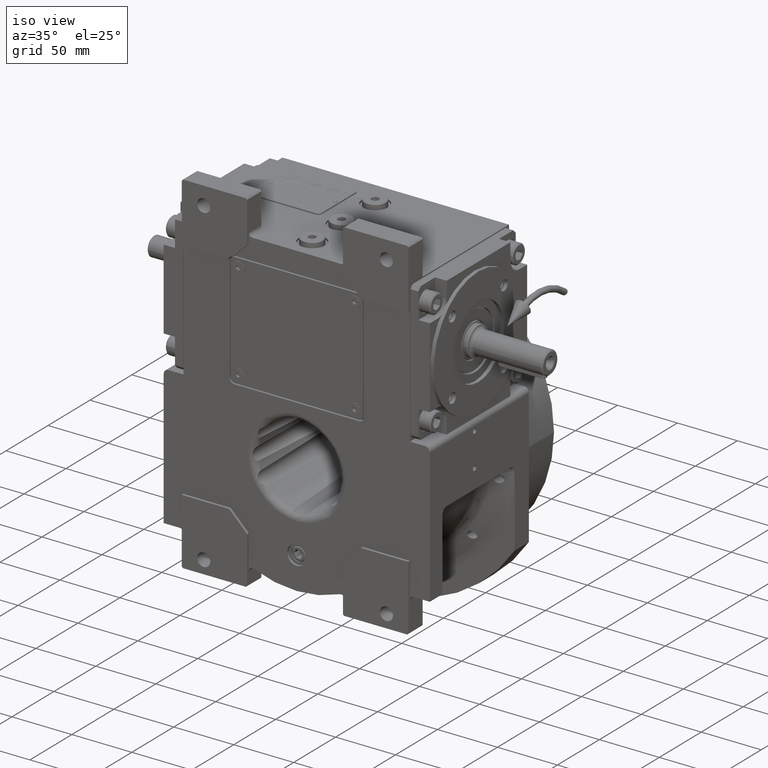
[diagram: clean part render]
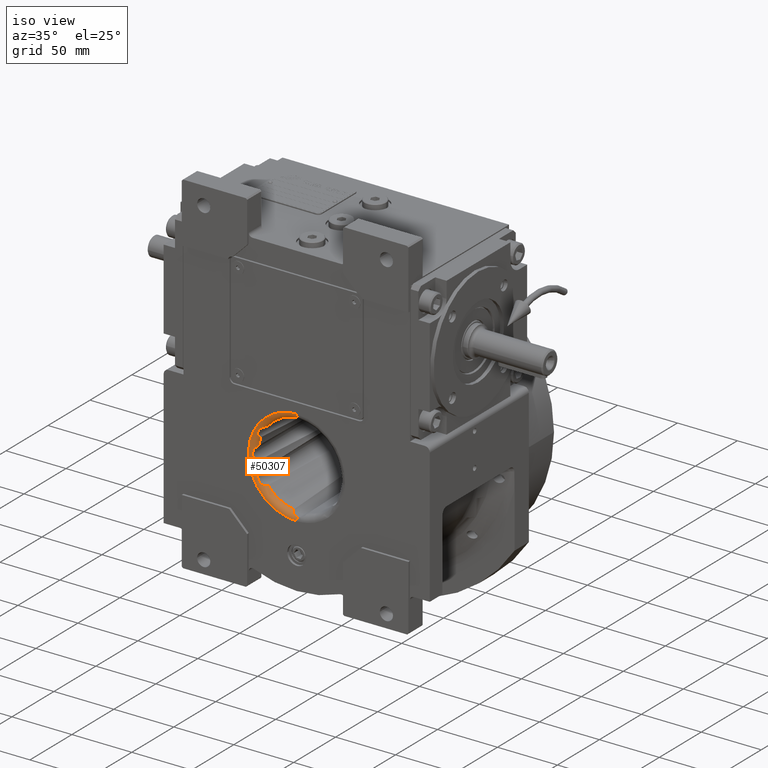
[diagram: same view with one face highlighted and labeled with its STEP entity id]
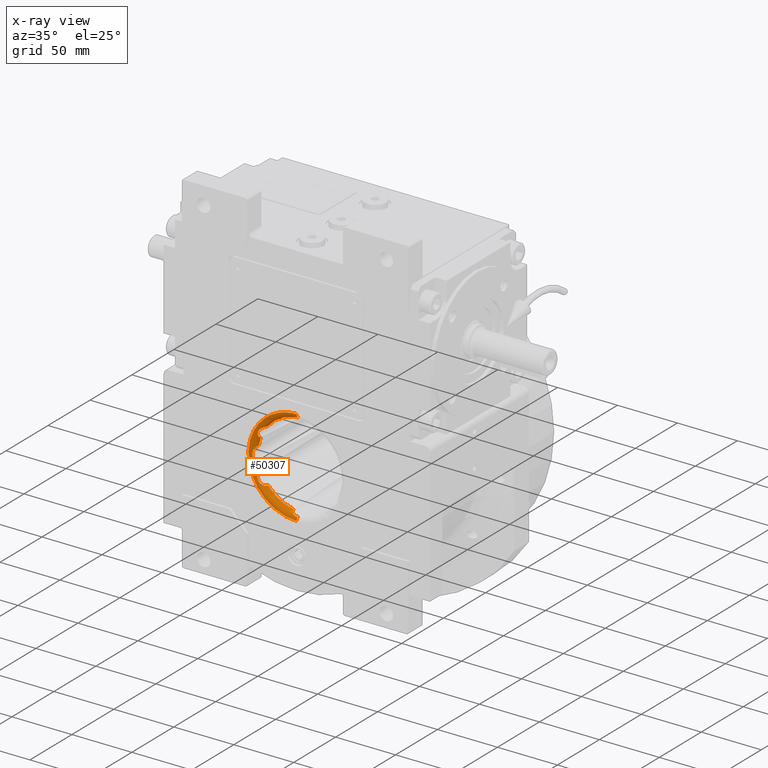
[diagram: x-ray of the same camera — body ghosted, the highlighted face saturated]
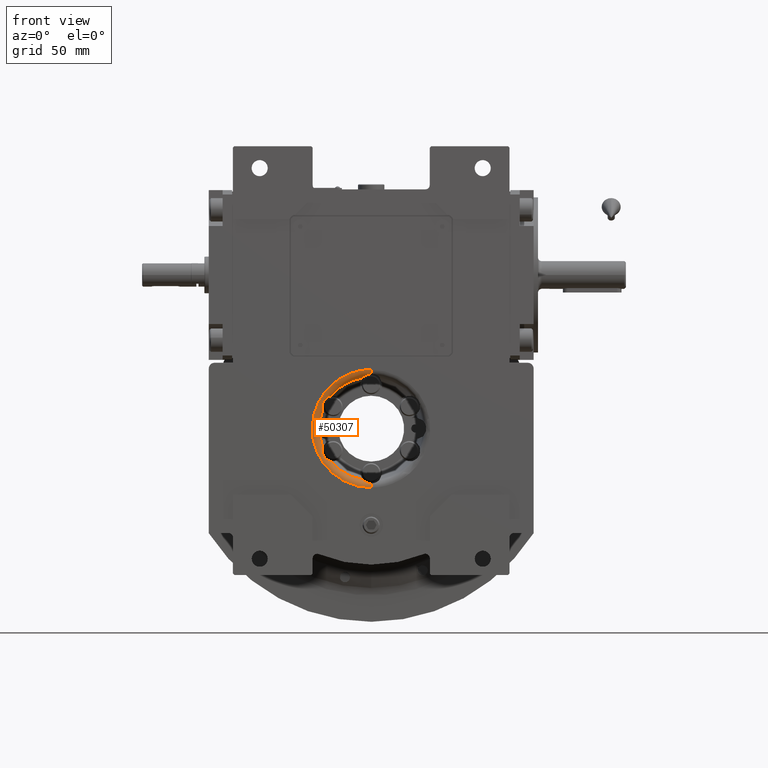
[diagram: same view with one face highlighted and labeled with its STEP entity id]
A machine part, iso view. The second image highlights one B-rep face of the part: STEP entity #50307.
The next image is the same camera in x-ray: the body ghosted, the highlighted face saturated — about 0% of this face is hidden behind the body in this view.
A second angle (front view) of the same face is appended — the face is thin or edge-on in the first view.
In plain terms, the highlighted toroidal blend (fillet) surface has major radius 40.3096 mm and minor (blend) radius 5 mm.
Its self-contained STEP definition (entity closure, byte-faithful):
#106 = EDGE_CURVE ( 'NONE', #64849, #56020, #44789, .T. ) ;
#228 = CARTESIAN_POINT ( 'NONE',  ( -31.82166990027069531, -52.58899155538596659, 19.71231372235984125 ) ) ;
#239 = CARTESIAN_POINT ( 'NONE',  ( -1.603856535494735125E-09, -52.63596184683439816, 37.50000000000000000 ) ) ;
#572 = CARTESIAN_POINT ( 'NONE',  ( -28.90464695035921494, -51.45251600167598127, 21.91045421014402095 ) ) ;
#581 = CARTESIAN_POINT ( 'NONE',  ( -5.213985633455788360, -50.60237093196881375, 35.39102302310666914 ) ) ;
#909 = CARTESIAN_POINT ( 'NONE',  ( -28.15008051919111765, -50.73773405834930372, -22.17961611171003611 ) ) ;
#1192 = ORIENTED_EDGE ( 'NONE', *, *, #40376, .T. ) ;
#1270 = CARTESIAN_POINT ( 'NONE',  ( -32.27610797784565477, -52.63304389909050940, -19.08511628725423037 ) ) ;
#1611 = CARTESIAN_POINT ( 'NONE',  ( -27.99487110530977318, -50.53926129247206944, -22.22432816892212415 ) ) ;
#1614 = CARTESIAN_POINT ( 'NONE',  ( -33.48065902542229821, -51.94651877671636697, -15.00005041233815284 ) ) ;
#1617 = CARTESIAN_POINT ( 'NONE',  ( -2.408118901776810095, -52.40757125817717110, -37.11215947056530240 ) ) ;
#1625 = CARTESIAN_POINT ( 'NONE',  ( -27.31593238095755183, -48.69402850002909844, 22.38019785351225011 ) ) ;
#1630 = CARTESIAN_POINT ( 'NONE',  ( -9.495824261203000555E-09, -48.50000000000000000, 40.30959420584730424 ) ) ;
#1944 = CARTESIAN_POINT ( 'NONE',  ( -31.82140708149247388, -52.58895953837874515, -19.71265100756068733 ) ) ;
#1950 = CARTESIAN_POINT ( 'NONE',  ( 1.603850723419534978E-09, -52.63596184683439816, -37.50000000000000000 ) ) ;
#2295 = CARTESIAN_POINT ( 'NONE',  ( -31.97949066727202805, -52.60861459975956933, -19.50990255030048459 ) ) ;
#2632 = CARTESIAN_POINT ( 'NONE',  ( -35.79781234965685144, -51.22087791308522498, 4.761083771521589014 ) ) ;
#2712 = CIRCLE ( 'NONE', #47624, 4.999999999999997335 ) ;
#2957 = CARTESIAN_POINT ( 'NONE',  ( -36.54770197314466174, -51.99170685750559073, 3.658733280678785782 ) ) ;
#3107 = CARTESIAN_POINT ( 'NONE',  ( -33.25967818971971468, -50.61906307847965536, -13.19280694728427150 ) ) ;
#3242 = CARTESIAN_POINT ( 'NONE',  ( -33.03978607334229878, -48.69402850002909844, 12.46619244321112063 ) ) ;
#3323 = EDGE_CURVE ( 'NONE', #15087, #50419, #2712, .T. ) ;
#3606 = CARTESIAN_POINT ( 'NONE',  ( -33.25969623485429594, -50.61914520538581996, 13.19286513792811455 ) ) ;
#3820 = CARTESIAN_POINT ( 'NONE',  ( -33.03978607334229878, -48.69402850002909844, -12.46619244321105846 ) ) ;
#3948 = CARTESIAN_POINT ( 'NONE',  ( -33.26640977064202787, -50.65337444815863677, 13.21985933045443673 ) ) ;
#3985 = CARTESIAN_POINT ( 'NONE',  ( -34.92230038515041457, -49.38786160803886105, -5.660090759269483129 ) ) ;
#4016 = DIRECTION ( 'NONE',  ( 0.000000000000000000, 1.000000000000000000, 0.000000000000000000 ) ) ;
#4330 = CARTESIAN_POINT ( 'NONE',  ( -35.38985876883371873, -50.60022425254692990, -5.215066509444947762 ) ) ;
#4639 = CARTESIAN_POINT ( 'NONE',  ( -33.47881434670429002, -51.87435534681035421, 14.83865528481973861 ) ) ;
#4678 = VERTEX_POINT ( 'NONE', #46112 ) ;
#4681 = CARTESIAN_POINT ( 'NONE',  ( -36.05737927987627955, -51.52631744755399268, -4.426109131331852353 ) ) ;
#4795 = CARTESIAN_POINT ( 'NONE',  ( -4.136350574445229356, -51.73019518094505287, 36.25730900795129941 ) ) ;
#5138 = CARTESIAN_POINT ( 'NONE',  ( -1.402137547244156845, -52.58474267382023015, 37.39942789236261689 ) ) ;
#5486 = CARTESIAN_POINT ( 'NONE',  ( -0.7110346611028061092, -52.63607783442121502, 37.50017074357127456 ) ) ;
#5572 = ORIENTED_EDGE ( 'NONE', *, *, #42747, .F. ) ;
#5845 = CARTESIAN_POINT ( 'NONE',  ( -3.657082585409805908, -51.99282415957538461, -36.54896482573982297 ) ) ;
#6074 = CARTESIAN_POINT ( 'NONE',  ( -36.38802021312464774, -51.85198914278720395, -3.929397563598371335 ) ) ;
#6183 = CARTESIAN_POINT ( 'NONE',  ( -4.432578927850743256, -51.53484705337476868, -36.05731220112073032 ) ) ;
#6508 = CARTESIAN_POINT ( 'NONE',  ( -27.31593238095755183, -48.69402850002909844, 22.38019785351225011 ) ) ;
#6517 = CARTESIAN_POINT ( 'NONE',  ( -0.3553892396859897329, -52.63601862953336763, -37.50008358898191574 ) ) ;
#6767 = CARTESIAN_POINT ( 'NONE',  ( -37.20514037371744820, -52.46491046812580805, -2.082363054648559864 ) ) ;
#6977 = AXIS2_PLACEMENT_3D ( 'NONE', #59723, #65346, #64656 ) ;
#7212 = CARTESIAN_POINT ( 'NONE',  ( -29.61160658843931515, -51.88574788270577187, -21.56233139341213345 ) ) ;
#7545 = CARTESIAN_POINT ( 'NONE',  ( -32.41541406928116942, -52.63782132828642801, -18.86172920714922441 ) ) ;
#8114 = VERTEX_POINT ( 'NONE', #25023 ) ;
#8241 = CARTESIAN_POINT ( 'NONE',  ( -37.49999999996260414, -52.63596185006461070, 9.692922927498324540E-14 ) ) ;
#8576 = CARTESIAN_POINT ( 'NONE',  ( -35.46445849641784775, -50.73085163937124520, 5.137289340209725275 ) ) ;
#8868 = CARTESIAN_POINT ( 'NONE',  ( -33.20376525769733433, -50.31782160580227270, 12.98095620934816274 ) ) ;
#8938 = CARTESIAN_POINT ( 'NONE',  ( -34.87905876915444736, -49.40060510385536219, 5.694260973935433512 ) ) ;
#9008 = ORIENTED_EDGE ( 'NONE', *, *, #40462, .T. ) ;
#9286 = CARTESIAN_POINT ( 'NONE',  ( -37.50001804720012188, -52.63597410645154895, 0.3561209110706364256 ) ) ;
#9598 = CARTESIAN_POINT ( 'NONE',  ( -35.37957790959993787, -50.58149279196190662, -5.225635647150365770 ) ) ;
#9895 = ORIENTED_EDGE ( 'NONE', *, *, #17764, .T. ) ;
#9942 = CARTESIAN_POINT ( 'NONE',  ( -35.33198131337425707, -50.49248030931245523, -5.274176207015206508 ) ) ;
#10055 = CARTESIAN_POINT ( 'NONE',  ( -32.27624098121946616, -52.63306527710381033, 19.08495180356178622 ) ) ;
#10395 = CARTESIAN_POINT ( 'NONE',  ( -27.99484523414499648, -50.53926012206724039, 22.22436048947779241 ) ) ;
#10561 = FACE_OUTER_BOUND ( 'NONE', #57931, .T. ) ;
#10749 = CARTESIAN_POINT ( 'NONE',  ( -2.147007264600772292, -52.45314069633177212, 37.18618173184081144 ) ) ;
#11101 = CARTESIAN_POINT ( 'NONE',  ( -1.770545072169945389, -52.51592466892537203, -37.28897095161995168 ) ) ;
#11439 = CARTESIAN_POINT ( 'NONE',  ( -29.45071512104983924, -51.79873107903132734, -21.64931960722958237 ) ) ;
#11559 = ORIENTED_EDGE ( 'NONE', *, *, #21361, .F. ) ;
#11618 = CARTESIAN_POINT ( 'NONE',  ( 9.495576041210020624E-09, -48.50000000000000000, -40.30959420584725450 ) ) ;
#11678 = CARTESIAN_POINT ( 'NONE',  ( -36.98772609009770918, -52.32430996658008837, -2.730876037895151764 ) ) ;
#11820 = CARTESIAN_POINT ( 'NONE',  ( -1.264761546777279996E-10, -53.50000000000000000, 40.30959420574835406 ) ) ;
#12017 = CARTESIAN_POINT ( 'NONE',  ( -36.92381443595463253, -52.28035557930471100, -2.888882551871136073 ) ) ;
#12122 = CARTESIAN_POINT ( 'NONE',  ( -33.18463355244589508, -52.51304589151576607, -17.09080855748500127 ) ) ;
#12131 = CARTESIAN_POINT ( 'NONE',  ( -2.019194410547934471, -52.47597893397735191, -37.22310471339797999 ) ) ;
#12419 = CARTESIAN_POINT ( 'NONE',  ( 1.065814103640149963E-14, -48.69402850002909844, 0.000000000000000000 ) ) ;
#12484 = CARTESIAN_POINT ( 'NONE',  ( -32.98485581099367892, -52.58824656776791073, -17.69557827717121512 ) ) ;
#12492 = CARTESIAN_POINT ( 'NONE',  ( -1.264761546777279996E-10, -53.50000000000000000, 40.30959420574835406 ) ) ;
#12526 = ORIENTED_EDGE ( 'NONE', *, *, #30234, .T. ) ;
#12824 = CARTESIAN_POINT ( 'NONE',  ( -29.73623849775449912, -51.95039087709809422, -21.49279114163323001 ) ) ;
#12844 = VERTEX_POINT ( 'NONE', #1625 ) ;
#13511 = CARTESIAN_POINT ( 'NONE',  ( -36.71685402489272576, -52.12829075709934301, 3.341139710935104201 ) ) ;
#13543 = VERTEX_POINT ( 'NONE', #45448 ) ;
#13654 = CARTESIAN_POINT ( 'NONE',  ( -33.32681476171606505, -50.95814186081344133, -13.46893414121728583 ) ) ;
#13845 = CARTESIAN_POINT ( 'NONE',  ( -37.21721553879917366, -52.47236002905662389, 2.040129607821971280 ) ) ;
#14120 = CARTESIAN_POINT ( 'NONE',  ( -33.32681352969763822, -50.95796771459450980, 13.46871286634211451 ) ) ;
#14192 = CARTESIAN_POINT ( 'NONE',  ( -4.859880929579269981, -51.11171319814883418, -35.71475506715714943 ) ) ;
#14870 = CARTESIAN_POINT ( 'NONE',  ( -35.36041305861026984, -50.54599003041110450, -5.245238070575839018 ) ) ;
#15087 = VERTEX_POINT ( 'NONE', #44346 ) ;
#15169 = CARTESIAN_POINT ( 'NONE',  ( -33.48054826417087071, -51.92894447341314645, 14.95929972303161115 ) ) ;
#15209 = CARTESIAN_POINT ( 'NONE',  ( -34.86271863150046357, -49.04715064753124665, -5.709053451315692307 ) ) ;
#15308 = CARTESIAN_POINT ( 'NONE',  ( -33.48087625289132774, -52.14504185209366938, 15.46143532282157373 ) ) ;
#15317 = CARTESIAN_POINT ( 'NONE',  ( -2.080993371779203294, -52.46516507062592893, 37.20554895856382416 ) ) ;
#15502 = CARTESIAN_POINT ( 'NONE',  ( -33.48066850809050266, -51.94653394036819805, 15.00006573923463371 ) ) ;
#15668 = CARTESIAN_POINT ( 'NONE',  ( -28.03513028290850073, -50.59323479966307957, 22.21306719588055856 ) ) ;
#16014 = CARTESIAN_POINT ( 'NONE',  ( -32.66958967394590729, -52.63279990009927900, 18.40292938440524040 ) ) ;
#16025 = CARTESIAN_POINT ( 'NONE',  ( -5.244244369721164034, -50.54810657214439829, 35.36152057421318062 ) ) ;
#16184 = DIRECTION ( 'NONE',  ( 0.02678532785635648686, 6.641563648602939450E-35, -0.9996412087402295477 ) ) ;
#16206 = CARTESIAN_POINT ( 'NONE',  ( -33.48066850809050266, -51.94653394036819805, 15.00006573923463371 ) ) ;
#16350 = VERTEX_POINT ( 'NONE', #20040 ) ;
#16359 = CARTESIAN_POINT ( 'NONE',  ( -29.37057729870343081, -51.75232895819141277, 21.69044457255832015 ) ) ;
#16421 = TOROIDAL_SURFACE ( 'NONE', #63563, 40.30959420584725450, 5.000000000000000000 ) ;
#16596 = CARTESIAN_POINT ( 'NONE',  ( -37.49999999996260414, -52.63596185006461070, 9.692922927498324540E-14 ) ) ;
#16719 = CARTESIAN_POINT ( 'NONE',  ( -4.180282007061962624, -51.71590935630536734, -36.23605893272691247 ) ) ;
#17062 = CARTESIAN_POINT ( 'NONE',  ( -33.48082361012952646, -52.14515954086536453, -15.46182082587623086 ) ) ;
#17217 = CARTESIAN_POINT ( 'NONE',  ( -33.48018417484736631, -51.91093793313127946, -14.91866779479134841 ) ) ;
#17399 = CARTESIAN_POINT ( 'NONE',  ( -27.34776727166378052, -49.21579150799482960, -22.37331418890007484 ) ) ;
#17730 = CARTESIAN_POINT ( 'NONE',  ( -27.81309122354442920, -50.27051233547238240, 22.27280259028129095 ) ) ;
#17739 = CARTESIAN_POINT ( 'NONE',  ( -1.221830501721160589, -52.58184760362785681, -37.40229286780578377 ) ) ;
#17764 = EDGE_CURVE ( 'NONE', #16350, #47857, #59506, .T. ) ;
#18083 = CARTESIAN_POINT ( 'NONE',  ( -33.31070689276531027, -52.42588835643203282, -16.58979957195580113 ) ) ;
#18762 = CARTESIAN_POINT ( 'NONE',  ( -36.99174877754919777, -52.32951320379596893, 2.735823557509988735 ) ) ;
#19131 = CARTESIAN_POINT ( 'NONE',  ( -35.08589548655954360, -50.05446180876408846, 5.529198774539777261 ) ) ;
#19405 = CARTESIAN_POINT ( 'NONE',  ( -33.47920624286795999, -51.88341688619220093, 14.85827326807468651 ) ) ;
#19961 = CARTESIAN_POINT ( 'NONE',  ( -33.47919926927427525, -51.88335013683247610, -14.85813770133725420 ) ) ;
#20040 = CARTESIAN_POINT ( 'NONE',  ( -34.84639029672324995, -48.69402850002909844, 5.723853692384790470 ) ) ;
#20526 = DIRECTION ( 'NONE',  ( -0.1620874830058605665, 0.000000000000000000, -0.9867763920224403851 ) ) ;
#20596 = CARTESIAN_POINT ( 'NONE',  ( -28.52665296931992600, -51.14114105754256201, 22.05853010360354460 ) ) ;
#20606 = CARTESIAN_POINT ( 'NONE',  ( -4.541814814010053603, -51.43050647628417238, 35.97103802573684561 ) ) ;
#20922 = CARTESIAN_POINT ( 'NONE',  ( -28.35037556066065534, -50.97055849722179488, 22.11835270962255962 ) ) ;
#21295 = CARTESIAN_POINT ( 'NONE',  ( -29.53217472947199340, -51.84332695767740518, 21.60568760061989835 ) ) ;
#21306 = CARTESIAN_POINT ( 'NONE',  ( -2.211513715074604924, -52.44106279325023223, 37.16683635482760195 ) ) ;
#21361 = EDGE_CURVE ( 'NONE', #28611, #68153, #68148, .T. ) ;
#21619 = ORIENTED_EDGE ( 'NONE', *, *, #42511, .T. ) ;
#21634 = CARTESIAN_POINT ( 'NONE',  ( -30.33763547014608619, -52.22522622448745722, 21.12351240241823191 ) ) ;
#21969 = CARTESIAN_POINT ( 'NONE',  ( -33.31069636601709760, -52.42586585141022226, 16.58975659442354811 ) ) ;
#22334 = CARTESIAN_POINT ( 'NONE',  ( -3.192681566628153167, -52.18308567063969861, -36.78930608202927743 ) ) ;
#22668 = CARTESIAN_POINT ( 'NONE',  ( -27.88221631701478387, -50.37978553059509323, 22.25508433607534897 ) ) ;
#22950 = DIRECTION ( 'NONE',  ( -0.7735296818432539911, 0.000000000000000000, 0.6337600739297750696 ) ) ;
#23010 = CARTESIAN_POINT ( 'NONE',  ( -27.81307528316563449, -50.27039267517154286, -22.27274870067305912 ) ) ;
#23218 = B_SPLINE_CURVE_WITH_KNOTS ( 'NONE', 3,
 ( #31035, #15209, #3985, #36658, #52140, #52484, #41619, #9942, #14870, #9598, #4330, #52842, #25754, #42291, #4681, #47563, #69001, #27497, #28205, #6074, #43341, #60191, #32430, #12017, #11678, #33125, #26799, #59513, #37714, #65141, #6767, #53883, #64776, #16596 ),
 .UNSPECIFIED., .F., .F.,
 ( 4, 2, 2, 1, 1, 2, 2, 2, 2, 1, 1, 2, 2, 2, 2, 1, 1, 2, 2, 4 ),
 ( 0.000000000000000000, 0.06250007095847674721, 0.09375010643771551633, 0.1093751241773345956, 0.1171876330471449124, 0.1210938874820498279, 0.1250001419169547712, 0.1875002128754405528, 0.2187502483546837073, 0.2343752660943053401, 0.2421877749641161426, 0.2460940293990217520, 0.2500002838339273614, 0.3125003547924226077, 0.3437503902716703141, 0.3593754080112941951, 0.3671879168811062466, 0.3710941713160120781, 0.3750004257509179095, 0.5000005676679070143 ),
 .UNSPECIFIED. ) ;
#23348 = CARTESIAN_POINT ( 'NONE',  ( -32.78340051877566452, -52.62304107399407371, -18.16955845957494020 ) ) ;
#23697 = CARTESIAN_POINT ( 'NONE',  ( -37.22268275660455572, -52.47571902507378638, 2.020679979797129100 ) ) ;
#24524 = CARTESIAN_POINT ( 'NONE',  ( -33.26639435941452660, -50.65332744764304351, -13.21983680953401041 ) ) ;
#24666 = CARTESIAN_POINT ( 'NONE',  ( -33.46934774205939789, -51.74677745829865927, 14.57902418020418978 ) ) ;
#24742 = CARTESIAN_POINT ( 'NONE',  ( -5.528909143604688659, -50.05637871797110705, -35.08652819491122443 ) ) ;
#24881 = CARTESIAN_POINT ( 'NONE',  ( -33.43725824763872367, -51.51270214224192756, -14.17376328051372525 ) ) ;
#25023 = CARTESIAN_POINT ( 'NONE',  ( -34.84639029672330679, -48.69402850002909844, -5.723853692384699876 ) ) ;
#25081 = CARTESIAN_POINT ( 'NONE',  ( -37.28858991426233871, -52.51569948671471622, 1.772161780013235211 ) ) ;
#25350 = CARTESIAN_POINT ( 'NONE',  ( -33.43721194407241626, -51.51252245795610207, 14.17352376834074690 ) ) ;
#25630 = ORIENTED_EDGE ( 'NONE', *, *, #43344, .T. ) ;
#25669 = AXIS2_PLACEMENT_3D ( 'NONE', #68696, #4016, #20526 ) ;
#25709 = CARTESIAN_POINT ( 'NONE',  ( -33.37939893499036259, -51.19734212857890299, 13.72915272299557898 ) ) ;
#25754 = CARTESIAN_POINT ( 'NONE',  ( -35.71156677534126800, -51.11644979083904161, -4.870261559791985384 ) ) ;
#25826 = ORIENTED_EDGE ( 'NONE', *, *, #30471, .T. ) ;
#25875 = CARTESIAN_POINT ( 'NONE',  ( -5.660053882841262762, -49.38902629021723101, 34.92249272575195818 ) ) ;
#26555 = CARTESIAN_POINT ( 'NONE',  ( -33.21886480365199645, -52.49421037881351282, 16.96874346949645940 ) ) ;
#26564 = CARTESIAN_POINT ( 'NONE',  ( -5.337701821182674777, -50.36790029762664034, 35.26884467610457108 ) ) ;
#26799 = CARTESIAN_POINT ( 'NONE',  ( -37.11961633128157700, -52.41119237297187539, -2.361438990487018774 ) ) ;
#26921 = CARTESIAN_POINT ( 'NONE',  ( -32.98500176666255612, -52.58821805067566402, 17.69522100607603576 ) ) ;
#26933 = CARTESIAN_POINT ( 'NONE',  ( -5.531674865055950185, -49.87266461318392174, 35.06522989247702071 ) ) ;
#27032 = CIRCLE ( 'NONE', #43865, 35.31336033009884545 ) ;
#27186 = CIRCLE ( 'NONE', #6977, 35.31336033009861097 ) ;
#27264 = CARTESIAN_POINT ( 'NONE',  ( -33.48066850809050266, -51.94653394036819805, 15.00006573923463371 ) ) ;
#27272 = CARTESIAN_POINT ( 'NONE',  ( -2.734876952242926595, -52.32990321998264704, -36.99229463609380986 ) ) ;
#27497 = CARTESIAN_POINT ( 'NONE',  ( -36.33302609461205179, -51.80157108876118599, -4.017864707336462615 ) ) ;
#27735 = EDGE_CURVE ( 'NONE', #8114, #13543, #23218, .T. ) ;
#27772 = DIRECTION ( 'NONE',  ( -1.823235189940330996E-09, -1.000000000000000000, 5.937889069329574197E-11 ) ) ;
#27959 = CARTESIAN_POINT ( 'NONE',  ( -1.644874037755940321, -52.53311730977172544, -37.31807545137576909 ) ) ;
#28205 = CARTESIAN_POINT ( 'NONE',  ( -36.36603438118996934, -51.83193400220352487, -3.964955959274371722 ) ) ;
#28301 = CARTESIAN_POINT ( 'NONE',  ( -27.88221310447731582, -50.37970870707397353, -22.25503616438187393 ) ) ;
#28611 = VERTEX_POINT ( 'NONE', #11820 ) ;
#28644 = CARTESIAN_POINT ( 'NONE',  ( -29.83633626812550688, -51.99876485710613139, -21.43405917139887507 ) ) ;
#28666 = ORIENTED_EDGE ( 'NONE', *, *, #33485, .T. ) ;
#28981 = CARTESIAN_POINT ( 'NONE',  ( -33.07242516352964401, -52.56323015633553553, -17.45515814673914790 ) ) ;
#29680 = CARTESIAN_POINT ( 'NONE',  ( -35.40883116458054758, -50.63429406205108307, 5.195476240417631786 ) ) ;
#30234 = EDGE_CURVE ( 'NONE', #50419, #4678, #32256, .T. ) ;
#30377 = CARTESIAN_POINT ( 'NONE',  ( -34.84639029672324995, -48.69402850002909844, 5.723853692384790470 ) ) ;
#30471 = EDGE_CURVE ( 'NONE', #4678, #57751, #42571, .T. ) ;
#30730 = CARTESIAN_POINT ( 'NONE',  ( -37.37171492615146207, -52.56446644681851410, 1.393794187946060914 ) ) ;
#31035 = CARTESIAN_POINT ( 'NONE',  ( -34.84639029672330679, -48.69402850002909844, -5.723853692384699876 ) ) ;
#31349 = CARTESIAN_POINT ( 'NONE',  ( -33.24545701223997440, -50.54520048868605642, 13.13682072576230908 ) ) ;
#31501 = CARTESIAN_POINT ( 'NONE',  ( -29.61155332908295890, -51.88571261543106772, 21.56234932649866920 ) ) ;
#31849 = CARTESIAN_POINT ( 'NONE',  ( -29.83647181322517028, -51.99880890157818669, 21.43394373490555083 ) ) ;
#32101 = B_SPLINE_CURVE_WITH_KNOTS ( 'NONE', 3,
 ( #43801, #17399, #33924, #23010, #28301, #1611, #44467, #33220, #909, #59616, #65917, #66274, #55715, #50430, #11439, #49410, #59966, #7212, #12824, #28644, #39203, #39556, #50079, #61000, #65580, #60657, #1944, #2295, #1270, #7545, #38854, #23348, #12484, #28981, #12122, #32891, #54666, #44817, #18083, #34265, #65241, #17062, #60292 ),
 .UNSPECIFIED., .F., .F.,
 ( 4, 2, 2, 2, 2, 2, 2, 1, 2, 2, 2, 2, 2, 2, 2, 2, 2, 2, 2, 2, 2, 4 ),
 ( 0.000000000000000000, 0.09234864886103458237, 0.1154358110762931516, 0.1269793921839224848, 0.1385229732915518042, 0.1846972977220700807, 0.2308716221525883572, 0.2424152032602180928, 0.2481869938140328358, 0.2539587843678475787, 0.2770459465831071610, 0.3693945954441450463, 0.3924817576594041291, 0.4155689198746632118, 0.4617432443051804891, 0.5079175687356978219, 0.5540918931662149882, 0.6002662175967323765, 0.6233533798119909042, 0.6348969609196200015, 0.6464405420272492098, 0.7387891908882820990 ),
 .UNSPECIFIED. ) ;
#32193 = CARTESIAN_POINT ( 'NONE',  ( -5.709080662314408805, -49.04780223733666844, 34.86273980539187534 ) ) ;
#32256 = B_SPLINE_CURVE_WITH_KNOTS ( 'NONE', 3,
 ( #1950, #6517, #49755, #17739, #39564, #27959, #11101, #60299, #39216, #12131, #32557, #1617, #27272, #22334, #33932, #55385, #5845, #59623, #43451, #64891, #32901, #16719, #6183, #49052, #14192, #46224, #61705, #40253, #40957, #62047, #34967, #24742, #66961, #50442 ),
 .UNSPECIFIED., .F., .F.,
 ( 4, 2, 2, 1, 1, 2, 2, 2, 2, 1, 1, 2, 2, 2, 2, 1, 1, 2, 2, 4 ),
 ( 0.000000000000000000, 0.1250000000000070499, 0.1875000000000105749, 0.2187500000000123235, 0.2343750000000133504, 0.2421875000000140166, 0.2500000000000147105, 0.3750000000000313638, 0.4375000000000402456, 0.4687500000000444644, 0.4843750000000465739, 0.4921875000000475731, 0.5000000000000486278, 0.6250000000000648370, 0.6875000000000721645, 0.7187500000000759393, 0.7343750000000769385, 0.7421875000000758282, 0.7500000000000747180, 1.000000000000000000 ),
 .UNSPECIFIED. ) ;
#32430 = CARTESIAN_POINT ( 'NONE',  ( -36.72054412596219919, -52.13325453623166084, -3.346850531325738842 ) ) ;
#32549 = CARTESIAN_POINT ( 'NONE',  ( -33.28154941634980446, -52.45048733185246448, 16.71838823758258386 ) ) ;
#32557 = CARTESIAN_POINT ( 'NONE',  ( -2.038649379472019074, -52.47262412882876959, -37.21764271321559647 ) ) ;
#32698 = DIRECTION ( 'NONE',  ( -0.9867763920224401630, 0.000000000000000000, 0.1620874830058615379 ) ) ;
#32891 = CARTESIAN_POINT ( 'NONE',  ( -33.21885165357554826, -52.49420048062674482, -16.96874070924613775 ) ) ;
#32901 = CARTESIAN_POINT ( 'NONE',  ( -3.873265404994210570, -51.88301660350804667, -36.42246871604143621 ) ) ;
#33125 = CARTESIAN_POINT ( 'NONE',  ( -37.07678581122569028, -52.38337654283647282, -2.485909879434107239 ) ) ;
#33220 = CARTESIAN_POINT ( 'NONE',  ( -28.11107397282316001, -50.69023729966089320, -22.19117005792075759 ) ) ;
#33485 = EDGE_CURVE ( 'NONE', #12844, #48475, #27032, .T. ) ;
#33499 = DIRECTION ( 'NONE',  ( 0.000000000000000000, 1.000000000000000000, 0.000000000000000000 ) ) ;
#33924 = CARTESIAN_POINT ( 'NONE',  ( -27.49874785485243578, -49.70986542432565614, -22.34942202991016558 ) ) ;
#33932 = CARTESIAN_POINT ( 'NONE',  ( -3.339907106195180830, -52.12907734837770590, -36.71780282095790682 ) ) ;
#34265 = CARTESIAN_POINT ( 'NONE',  ( -33.32433212886009954, -52.41300609219351969, -16.52581018458113959 ) ) ;
#34600 = CARTESIAN_POINT ( 'NONE',  ( -35.41752721714409802, -50.64966747116742596, 5.186441859107508989 ) ) ;
#34960 = CARTESIAN_POINT ( 'NONE',  ( -36.23459986853348624, -51.71445036787208949, 4.182271700432508510 ) ) ;
#34967 = CARTESIAN_POINT ( 'NONE',  ( -5.194316907912090109, -50.63645387683877885, -35.41003222769442971 ) ) ;
#35307 = CARTESIAN_POINT ( 'NONE',  ( -35.53172959687601917, -50.84184820920377490, 5.065541676441748464 ) ) ;
#35447 = CARTESIAN_POINT ( 'NONE',  ( -33.22428206948163876, -50.43317977600020896, -13.05517705560583153 ) ) ;
#36017 = CARTESIAN_POINT ( 'NONE',  ( -35.71345797838820602, -51.10994973858156953, 4.861391692245820906 ) ) ;
#36367 = ORIENTED_EDGE ( 'NONE', *, *, #40350, .T. ) ;
#36621 = CARTESIAN_POINT ( 'NONE',  ( -33.13976139157235679, -49.92059330197461975, 12.76318837579454168 ) ) ;
#36658 = CARTESIAN_POINT ( 'NONE',  ( -35.06469899328584461, -49.87096634862357547, -5.531975177983490255 ) ) ;
#36766 = CARTESIAN_POINT ( 'NONE',  ( -33.26548957792709871, -52.46256714566826673, 16.78507972991737773 ) ) ;
#37145 = CARTESIAN_POINT ( 'NONE',  ( -4.424254601297963774, -51.52785900211974024, 36.05878848178949880 ) ) ;
#37493 = CARTESIAN_POINT ( 'NONE',  ( -3.927364173148061965, -51.85339626484464048, 36.38951893049397768 ) ) ;
#37714 = CARTESIAN_POINT ( 'NONE',  ( -37.18576368827346812, -52.45287621578015802, -2.148322745949382995 ) ) ;
#37820 = CARTESIAN_POINT ( 'NONE',  ( -29.10636611566022225, -51.59332625700574226, 21.82219709305287481 ) ) ;
#38194 = CARTESIAN_POINT ( 'NONE',  ( -4.015853436458630910, -51.80299540014197390, 36.33450886200190411 ) ) ;
#38854 = CARTESIAN_POINT ( 'NONE',  ( -32.66951811604604217, -52.63282135041917087, -18.40311764437244335 ) ) ;
#39203 = CARTESIAN_POINT ( 'NONE',  ( -30.33721481330763581, -52.22506984247315387, -21.12382421556052492 ) ) ;
#39216 = CARTESIAN_POINT ( 'NONE',  ( -1.977912365096969660, -52.48296653042543625, -37.23451985414305199 ) ) ;
#39556 = CARTESIAN_POINT ( 'NONE',  ( -30.73873988947492109, -52.35657776438261379, -20.82196410583460278 ) ) ;
#39564 = CARTESIAN_POINT ( 'NONE',  ( -1.392152352229851786, -52.56464103771448748, -37.37202038903483015 ) ) ;
#40245 = CARTESIAN_POINT ( 'NONE',  ( -37.11171655400772096, -52.40727755464578763, 2.409194244708687815 ) ) ;
#40253 = CARTESIAN_POINT ( 'NONE',  ( -5.136070342685880696, -50.73290559809645117, -35.46567060435182839 ) ) ;
#40350 = EDGE_CURVE ( 'NONE', #59724, #12844, #53020, .T. ) ;
#40376 = EDGE_CURVE ( 'NONE', #57751, #64849, #32101, .T. ) ;
#40406 = CARTESIAN_POINT ( 'NONE',  ( -33.16425630549234427, -50.08303215230528593, -12.84238301068694454 ) ) ;
#40462 = EDGE_CURVE ( 'NONE', #13543, #16350, #40480, .T. ) ;
#40480 = B_SPLINE_CURVE_WITH_KNOTS ( 'NONE', 3,
 ( #8241, #9286, #57463, #46215, #30730, #45178, #25081, #62379, #45849, #23697, #13845, #40245, #18762, #61692, #13511, #57101, #2957, #41288, #67303, #62731, #67651, #34960, #52172, #2632, #36017, #61335, #35307, #8576, #67986, #34600, #29680, #19131, #8938, #30377 ),
 .UNSPECIFIED., .F., .F.,
 ( 4, 2, 2, 1, 1, 2, 2, 2, 2, 1, 1, 2, 2, 2, 2, 1, 1, 2, 2, 4 ),
 ( 0.5000005676679070143, 0.5625004967094242581, 0.5937504612301829354, 0.6093754434905622741, 0.6171879346207520545, 0.6210941801858467226, 0.6250004257509412797, 0.6875003547924596337, 0.7187503193132186441, 0.7343753015735978718, 0.7421877927037874301, 0.7460940382688822092, 0.7500002838339769884, 0.8125002128754843511, 0.8437501773962379215, 0.8593751596566143736, 0.8671876507868030437, 0.8710938963518970457, 0.8750001419169910477, 1.000000000000000000 ),
 .UNSPECIFIED. ) ;
#40957 = CARTESIAN_POINT ( 'NONE',  ( -5.165745639725680682, -50.68437087274132580, -35.43741778940965048 ) ) ;
#40967 = ORIENTED_EDGE ( 'NONE', *, *, #3323, .T. ) ;
#41090 = CARTESIAN_POINT ( 'NONE',  ( -33.47880876522909688, -51.87426845277531129, -14.83847188804111106 ) ) ;
#41288 = CARTESIAN_POINT ( 'NONE',  ( -36.47933388216146966, -51.93305820750673973, 3.777234142072018575 ) ) ;
#41439 = CARTESIAN_POINT ( 'NONE',  ( -33.46937295990052519, -51.74681481219972312, -14.57904754091818411 ) ) ;
#41577 = CARTESIAN_POINT ( 'NONE',  ( -33.04683298299452332, -49.06300647993788999, 12.48810653588035713 ) ) ;
#41619 = CARTESIAN_POINT ( 'NONE',  ( -35.26789628715624048, -50.36584836253540232, -5.338458874991521164 ) ) ;
#41925 = CARTESIAN_POINT ( 'NONE',  ( -33.48019679877880606, -51.91098471385154767, 14.91874690794370295 ) ) ;
#42073 = CARTESIAN_POINT ( 'NONE',  ( -3.345691109868505819, -52.13401398793416774, 36.72146529940926030 ) ) ;
#42291 = CARTESIAN_POINT ( 'NONE',  ( -35.96965129307087494, -51.42891455430549286, -4.543601400648989319 ) ) ;
#42414 = CARTESIAN_POINT ( 'NONE',  ( -2.887888764013675225, -52.28084012361778576, 36.92445607941755981 ) ) ;
#42511 = EDGE_CURVE ( 'NONE', #48475, #68153, #62122, .T. ) ;
#42558 = DIRECTION ( 'NONE',  ( 0.000000000000000000, 1.000000000000000000, 0.000000000000000000 ) ) ;
#42568 = CARTESIAN_POINT ( 'NONE',  ( 0.000000000000000000, -48.50000000000000000, 2.075601271575409789E-14 ) ) ;
#42571 = CIRCLE ( 'NONE', #25669, 35.31336033009873887 ) ;
#42747 = EDGE_CURVE ( 'NONE', #15087, #28611, #47788, .T. ) ;
#42769 = CARTESIAN_POINT ( 'NONE',  ( -31.57118587858128578, -52.54735018177248662, 20.00172411728637201 ) ) ;
#42779 = CARTESIAN_POINT ( 'NONE',  ( -2.484828966678119588, -52.38371084342134054, 37.07727184074595073 ) ) ;
#42900 = CARTESIAN_POINT ( 'NONE',  ( -33.03978607334229878, -48.69402850002909844, 12.46619244321112063 ) ) ;
#43112 = CARTESIAN_POINT ( 'NONE',  ( -33.32432813776915737, -52.41297220443973970, 16.52572224663000355 ) ) ;
#43123 = CARTESIAN_POINT ( 'NONE',  ( -2.103838133956787537, -52.46106213540124941, 37.19892139164647915 ) ) ;
#43341 = CARTESIAN_POINT ( 'NONE',  ( -36.40000266279696461, -51.86281982276506852, -3.909829758493076568 ) ) ;
#43344 = EDGE_CURVE ( 'NONE', #56020, #8114, #27186, .T. ) ;
#43445 = CARTESIAN_POINT ( 'NONE',  ( -27.34777071429517292, -49.21603130017612671, 22.37332468078882286 ) ) ;
#43451 = CARTESIAN_POINT ( 'NONE',  ( -3.825310640006864826, -51.90841265313728314, -36.45116754972217876 ) ) ;
#43801 = CARTESIAN_POINT ( 'NONE',  ( -27.31593238095755183, -48.69402850002909844, -22.38019785351220392 ) ) ;
#43805 = CARTESIAN_POINT ( 'NONE',  ( -1.603856535494735125E-09, -52.63596184683439816, 37.50000000000000000 ) ) ;
#43865 = AXIS2_PLACEMENT_3D ( 'NONE', #12419, #33499, #22950 ) ;
#43950 = CARTESIAN_POINT ( 'NONE',  ( -33.48065902542229821, -51.94651877671636697, -15.00005041233815284 ) ) ;
#44346 = CARTESIAN_POINT ( 'NONE',  ( 1.264666971694413862E-10, -53.50000000000000000, -40.30959420574829721 ) ) ;
#44467 = CARTESIAN_POINT ( 'NONE',  ( -28.03519106946358619, -50.59329502141230250, -22.21303589766046471 ) ) ;
#44649 = DIRECTION ( 'NONE',  ( -1.000000000000000000, 1.823235189932914908E-09, -1.248917852221759926E-10 ) ) ;
#44688 = ORIENTED_EDGE ( 'NONE', *, *, #60802, .T. ) ;
#44789 = B_SPLINE_CURVE_WITH_KNOTS ( 'NONE', 3,
 ( #43950, #65389, #17217, #19961, #41090, #62523, #56223, #41439, #67457, #24881, #62891, #13654, #24524, #3107, #51620, #35447, #51965, #40406, #62195, #46014, #56566, #3820 ),
 .UNSPECIFIED., .F., .F.,
 ( 4, 2, 2, 1, 2, 2, 2, 2, 1, 2, 2, 4 ),
 ( 0.7387891908882820990, 0.7469520286730227943, 0.7510334475653932529, 0.7551148664577637115, 0.7714405420272458791, 0.8040918931662103253, 0.8693945954441402169, 0.8775574332288816892, 0.8857202710136231616, 0.9020459465831056622, 0.9346972977220708856, 1.000000000000000000 ),
 .UNSPECIFIED. ) ;
#44817 = CARTESIAN_POINT ( 'NONE',  ( -33.28157461314806653, -52.45048440668971779, -16.71832979067082192 ) ) ;
#44884 = CARTESIAN_POINT ( 'NONE',  ( -5.723853692384750502, -48.69402850002909844, 34.84639029672330679 ) ) ;
#45178 = CARTESIAN_POINT ( 'NONE',  ( -37.31771862321354405, -52.53290910168925620, 1.646514318458163206 ) ) ;
#45439 = B_SPLINE_CURVE_WITH_KNOTS ( 'NONE', 3,
 ( #3242, #41577, #52101, #36621, #52439, #8868, #62661, #31349, #3606, #3948, #14120, #25709, #25350, #63694, #24666, #52800, #51388, #4639, #19405, #41925, #15169, #15502 ),
 .UNSPECIFIED., .F., .F.,
 ( 4, 2, 2, 1, 2, 2, 2, 2, 1, 2, 2, 4 ),
 ( 0.000000000000000000, 0.06530604510289926556, 0.09795906765434832242, 0.1142855789300729064, 0.1224488345679348167, 0.1306120902057967270, 0.1959181353086967559, 0.2285711578601466176, 0.2448976691358714652, 0.2489792969548025037, 0.2530609247737335421, 0.2612241804115957855 ),
 .UNSPECIFIED. ) ;
#45448 = CARTESIAN_POINT ( 'NONE',  ( -37.49999999996260414, -52.63596185006461070, 9.692922927498324540E-14 ) ) ;
#45675 = AXIS2_PLACEMENT_3D ( 'NONE', #1630, #57827, #52524 ) ;
#45849 = CARTESIAN_POINT ( 'NONE',  ( -37.23410423135851488, -52.48271245820120612, 1.979424650386592655 ) ) ;
#46014 = CARTESIAN_POINT ( 'NONE',  ( -33.07617599617991999, -49.41862454316165554, -12.56596163033740332 ) ) ;
#46112 = CARTESIAN_POINT ( 'NONE',  ( -5.723853692384750502, -48.69402850002909844, -34.84639029672324995 ) ) ;
#46215 = CARTESIAN_POINT ( 'NONE',  ( -37.40202558354779683, -52.58169497980971840, 1.223412563955858623 ) ) ;
#46224 = CARTESIAN_POINT ( 'NONE',  ( -4.998169086091472479, -50.93486924981419151, -35.59279415036716188 ) ) ;
#47329 = CARTESIAN_POINT ( 'NONE',  ( -29.73629946629138843, -51.95040457042420456, 21.49272782484388600 ) ) ;
#47339 = CARTESIAN_POINT ( 'NONE',  ( -5.479718036409392035, -50.02922342849667103, 35.12163865967801257 ) ) ;
#47480 = CARTESIAN_POINT ( 'NONE',  ( -2.131628207280299927E-14, -48.69402850002909844, 3.375077994860475252E-14 ) ) ;
#47563 = CARTESIAN_POINT ( 'NONE',  ( -36.18958736087866868, -51.66286048789632446, -4.236484116431659785 ) ) ;
#47624 = AXIS2_PLACEMENT_3D ( 'NONE', #11618, #44649, #27772 ) ;
#47666 = CARTESIAN_POINT ( 'NONE',  ( -32.41530913566769101, -52.63782740952878214, 18.86193024835294452 ) ) ;
#47788 =( BOUNDED_CURVE ( )  B_SPLINE_CURVE ( 3, ( #49757, #60666, #50090, #12492 ),
 .UNSPECIFIED., .F., .F. ) 
 B_SPLINE_CURVE_WITH_KNOTS ( ( 4, 4 ),
 ( 1.432582689913126872, 4.574174019572492256 ),
 .UNSPECIFIED. ) 
 CURVE ( )  GEOMETRIC_REPRESENTATION_ITEM ( )  RATIONAL_B_SPLINE_CURVE ( ( 1.000000000000000000, 0.3333337746434759108, 0.3333337746434759108, 1.000000000000000000 ) ) 
 REPRESENTATION_ITEM ( '' )  );
#47857 = VERTEX_POINT ( 'NONE', #42900 ) ;
#48003 = CARTESIAN_POINT ( 'NONE',  ( -31.48546756048025586, -52.53143582435062342, 20.09574830436850590 ) ) ;
#48013 = CARTESIAN_POINT ( 'NONE',  ( -5.273256697089785838, -50.49458095574485128, 35.33304163518252494 ) ) ;
#48251 = AXIS2_PLACEMENT_3D ( 'NONE', #47480, #42558, #32698 ) ;
#48384 = CARTESIAN_POINT ( 'NONE',  ( -5.224591461864999786, -50.58361883684484894, 35.38071667490281413 ) ) ;
#48475 = VERTEX_POINT ( 'NONE', #44884 ) ;
#48719 = CARTESIAN_POINT ( 'NONE',  ( -28.11108987820152194, -50.69025118454985801, 22.19116009868342942 ) ) ;
#49052 = CARTESIAN_POINT ( 'NONE',  ( -4.759485884201080985, -51.22257027137430185, -35.79913352070200006 ) ) ;
#49410 = CARTESIAN_POINT ( 'NONE',  ( -29.53221175524831565, -51.84334611511910396, -21.60566600594648889 ) ) ;
#49755 = CARTESIAN_POINT ( 'NONE',  ( -0.7059246910499343830, -52.62281146501419471, -37.47527891408829959 ) ) ;
#49757 = CARTESIAN_POINT ( 'NONE',  ( 1.264666971694413862E-10, -53.50000000000000000, -40.30959420574829721 ) ) ;
#50079 = CARTESIAN_POINT ( 'NONE',  ( -31.22114954024525701, -52.47539370177626239, -20.36706681157654941 ) ) ;
#50090 = CARTESIAN_POINT ( 'NONE',  ( -80.61913312124997333, -53.49999999999999289, 40.30955543265923069 ) ) ;
#50307 = ADVANCED_FACE ( 'NONE', ( #10561 ), #16421, .T. ) ;
#50419 = VERTEX_POINT ( 'NONE', #59429 ) ;
#50430 = CARTESIAN_POINT ( 'NONE',  ( -29.37048728016447896, -51.75226369813923810, -21.69047191014950471 ) ) ;
#50442 = CARTESIAN_POINT ( 'NONE',  ( -5.723853692384750502, -48.69402850002909844, -34.84639029672324995 ) ) ;
#50446 = ORIENTED_EDGE ( 'NONE', *, *, #106, .T. ) ;
#51388 = CARTESIAN_POINT ( 'NONE',  ( -33.47774609865103201, -51.85368734645749100, 14.79462638612601744 ) ) ;
#51620 = CARTESIAN_POINT ( 'NONE',  ( -33.24545450998942187, -50.54515852359455863, -13.13677640902714394 ) ) ;
#51965 = CARTESIAN_POINT ( 'NONE',  ( -33.20379629175901215, -50.31788416556654653, -12.98094523765725583 ) ) ;
#52101 = CARTESIAN_POINT ( 'NONE',  ( -33.07614190768921958, -49.41840807794770996, 12.56593321534894692 ) ) ;
#52140 = CARTESIAN_POINT ( 'NONE',  ( -35.12098123532749128, -50.02738598863674468, -5.480134135199345558 ) ) ;
#52172 = CARTESIAN_POINT ( 'NONE',  ( -36.05591315746339376, -51.53332729827300795, 4.434423661272343331 ) ) ;
#52439 = CARTESIAN_POINT ( 'NONE',  ( -33.16420768629460269, -50.08288911404687127, 12.84237103832229643 ) ) ;
#52484 = CARTESIAN_POINT ( 'NONE',  ( -35.21699389580633976, -50.25430935889190209, -5.388068865621136183 ) ) ;
#52524 = DIRECTION ( 'NONE',  ( 1.823279159433930648E-09, -1.000000000000000000, -5.938027847207545066E-11 ) ) ;
#52800 = CARTESIAN_POINT ( 'NONE',  ( -33.47463011281934797, -51.80151121281925697, 14.68520001375310535 ) ) ;
#52842 = CARTESIAN_POINT ( 'NONE',  ( -35.54621144814458944, -50.88097923029396696, -5.053572992496665250 ) ) ;
#53020 = B_SPLINE_CURVE_WITH_KNOTS ( 'NONE', 3,
 ( #27264, #15308, #57887, #43112, #21969, #32549, #36766, #26555, #53624, #58224, #26921, #63846, #16014, #47666, #10055, #58580, #228, #42769, #48003, #69445, #58925, #69097, #21634, #31849, #47329, #31501, #68764, #21295, #64552, #16359, #37820, #572, #20596, #20922, #59267, #48719, #15668, #10395, #22668, #17730, #55376, #43445, #6508 ),
 .UNSPECIFIED., .F., .F.,
 ( 4, 2, 2, 2, 2, 2, 2, 2, 2, 2, 2, 2, 2, 2, 1, 2, 2, 2, 2, 2, 2, 4 ),
 ( 0.2612241804115957855, 0.3535711578601466454, 0.3651145300412157457, 0.3766579022222847906, 0.3997446465844232133, 0.4459181353086996147, 0.4920916240329760161, 0.5382651127572524175, 0.5844386014815288188, 0.6075253458436666865, 0.6306120902058045541, 0.7229590676543573569, 0.7460458120164954465, 0.7518174981070298024, 0.7575891841975643803, 0.7691325563786326480, 0.8153060451029053857, 0.8614795338271780123, 0.8730229060082467241, 0.8845662781893153248, 0.9076530225514521932, 1.000000000000000000 ),
 .UNSPECIFIED. ) ;
#53299 = CARTESIAN_POINT ( 'NONE',  ( -5.052230305277399580, -50.88291087529647427, 35.54746896821869484 ) ) ;
#53414 = CARTESIAN_POINT ( 'NONE',  ( -33.03978607334229878, -48.69402850002909844, -12.46619244321105846 ) ) ;
#53624 = CARTESIAN_POINT ( 'NONE',  ( -33.18468010030839110, -52.51304639989410816, 17.09071938583201344 ) ) ;
#53635 = CARTESIAN_POINT ( 'NONE',  ( -3.629204774560569113, -52.01591010110095681, 36.57070120480594966 ) ) ;
#53883 = CARTESIAN_POINT ( 'NONE',  ( -37.39900705305662143, -52.58451861614958034, -1.404435147106016357 ) ) ;
#54088 = ORIENTED_EDGE ( 'NONE', *, *, #27735, .T. ) ;
#54350 = CARTESIAN_POINT ( 'NONE',  ( -4.234545782348330789, -51.66433971526953428, 36.19103113201781241 ) ) ;
#54666 = CARTESIAN_POINT ( 'NONE',  ( -33.26553695913442255, -52.46253985258677233, -16.78490719616772253 ) ) ;
#55376 = CARTESIAN_POINT ( 'NONE',  ( -27.49880254169867300, -49.71014762110564789, 22.34948615973434727 ) ) ;
#55385 = CARTESIAN_POINT ( 'NONE',  ( -3.552697779826215818, -52.03964563101078511, -36.60600020602930726 ) ) ;
#55715 = CARTESIAN_POINT ( 'NONE',  ( -29.10610765022687119, -51.59314180384637183, -21.82229256885193180 ) ) ;
#56020 = VERTEX_POINT ( 'NONE', #53414 ) ;
#56223 = CARTESIAN_POINT ( 'NONE',  ( -33.47464488507939251, -51.80150128521189856, -14.68514706450364748 ) ) ;
#56566 = CARTESIAN_POINT ( 'NONE',  ( -33.04683412989724900, -49.06316082897400577, -12.48812047595958497 ) ) ;
#57101 = CARTESIAN_POINT ( 'NONE',  ( -36.60484686924163356, -52.03864515488902498, 3.554194316099296369 ) ) ;
#57463 = CARTESIAN_POINT ( 'NONE',  ( -37.47512975712456296, -52.62272417589142748, 0.7071437189113506383 ) ) ;
#57751 = VERTEX_POINT ( 'NONE', #58140 ) ;
#57827 = DIRECTION ( 'NONE',  ( 1.000000000000000000, 1.823279159426514974E-09, 1.249135085591654028E-10 ) ) ;
#57887 = CARTESIAN_POINT ( 'NONE',  ( -33.43874839453129511, -52.29148303848909762, 15.95211892569658652 ) ) ;
#57931 = EDGE_LOOP ( 'NONE', ( #9895, #44688, #36367, #28666, #21619, #11559, #5572, #40967, #12526, #25826, #1192, #50446, #25630, #54088, #9008 ) ) ;
#58140 = CARTESIAN_POINT ( 'NONE',  ( -27.31593238095755183, -48.69402850002909844, -22.38019785351220392 ) ) ;
#58224 = CARTESIAN_POINT ( 'NONE',  ( -33.07254936853102834, -52.56320848893034992, 17.45485700321354017 ) ) ;
#58238 = CARTESIAN_POINT ( 'NONE',  ( -5.723853692384750502, -48.69402850002909844, 34.84639029672330679 ) ) ;
#58397 = DIRECTION ( 'NONE',  ( 4.918457069522380007E-18, -1.000000000000000000, 1.317897701722361855E-19 ) ) ;
#58580 = CARTESIAN_POINT ( 'NONE',  ( -31.97974603072559319, -52.60864723382521646, 19.50957310056799798 ) ) ;
#58925 = CARTESIAN_POINT ( 'NONE',  ( -31.22107025168451244, -52.47537369524913942, 20.36714077585923732 ) ) ;
#58933 = CARTESIAN_POINT ( 'NONE',  ( -2.360293437398989003, -52.41149373253136190, 37.12006897583135867 ) ) ;
#59267 = CARTESIAN_POINT ( 'NONE',  ( -28.15013193581648565, -50.73778085825261996, 22.17958812407091784 ) ) ;
#59429 = CARTESIAN_POINT ( 'NONE',  ( 1.603850723419534978E-09, -52.63596184683439816, -37.50000000000000000 ) ) ;
#59506 = CIRCLE ( 'NONE', #48251, 35.31336033009879571 ) ;
#59513 = CARTESIAN_POINT ( 'NONE',  ( -37.16640983572779078, -52.44078884913686522, -2.212772513856393175 ) ) ;
#59616 = CARTESIAN_POINT ( 'NONE',  ( -28.35016232163347638, -50.97036712872989028, -22.11845893549994813 ) ) ;
#59623 = CARTESIAN_POINT ( 'NONE',  ( -3.775365088185350881, -51.93433030989869792, -36.48073606174968830 ) ) ;
#59723 = CARTESIAN_POINT ( 'NONE',  ( -2.273736754432320090E-13, -48.69402850002909844, -2.664535259100374750E-14 ) ) ;
#59724 = VERTEX_POINT ( 'NONE', #16206 ) ;
#59966 = CARTESIAN_POINT ( 'NONE',  ( -29.58681365607561631, -51.87268377217269233, -21.57599796854194096 ) ) ;
#60191 = CARTESIAN_POINT ( 'NONE',  ( -36.56951582499008424, -52.01488440820852333, -3.630697685061499147 ) ) ;
#60292 = CARTESIAN_POINT ( 'NONE',  ( -33.48065902542229821, -51.94651877671636697, -15.00005041233815284 ) ) ;
#60299 = CARTESIAN_POINT ( 'NONE',  ( -1.915896034671822123, -52.49325482596480441, -37.25139006299717437 ) ) ;
#60657 = CARTESIAN_POINT ( 'NONE',  ( -31.57099815150545652, -52.54732939689365878, -20.00196673865721309 ) ) ;
#60666 = CARTESIAN_POINT ( 'NONE',  ( -80.61913312099703433, -53.49999999999999289, -40.30952624498007708 ) ) ;
#60802 = EDGE_CURVE ( 'NONE', #47857, #59724, #45439, .T. ) ;
#61000 = CARTESIAN_POINT ( 'NONE',  ( -31.30983067032020628, -52.49528704351373420, -20.27896254745621363 ) ) ;
#61335 = CARTESIAN_POINT ( 'NONE',  ( -35.59153589107383908, -50.93297691739986988, 4.999542714260904575 ) ) ;
#61692 = CARTESIAN_POINT ( 'NONE',  ( -36.78847422854788363, -52.18241533498942175, 3.193797387094811757 ) ) ;
#61705 = CARTESIAN_POINT ( 'NONE',  ( -5.064238222524459765, -50.84381052462925510, -35.53296774912324452 ) ) ;
#62047 = CARTESIAN_POINT ( 'NONE',  ( -5.185284180731847492, -50.65179097773085459, -35.41871935916807246 ) ) ;
#62122 = B_SPLINE_CURVE_WITH_KNOTS ( 'NONE', 3,
 ( #58238, #32193, #25875, #26933, #47339, #68773, #26564, #48013, #16025, #48384, #581, #53299, #69108, #20606, #37145, #54350, #4795, #38194, #63517, #37493, #64215, #53635, #42073, #42414, #69460, #42779, #58933, #21306, #10749, #43123, #15317, #5138, #5486, #239 ),
 .UNSPECIFIED., .F., .F.,
 ( 4, 2, 2, 1, 1, 2, 2, 2, 2, 1, 1, 2, 2, 2, 2, 1, 1, 2, 2, 4 ),
 ( 0.000000000000000000, 0.1250000000000309752, 0.1875000000000467681, 0.2187500000000546507, 0.2343750000000596745, 0.2421875000000612010, 0.2500000000000627276, 0.3750000000000703881, 0.4375000000000743294, 0.4687500000000756617, 0.4843750000000769385, 0.4921875000000769385, 0.5000000000000769385, 0.6250000000000598410, 0.6875000000000511813, 0.7187500000000471845, 0.7343750000000451861, 0.7421875000000444089, 0.7500000000000435207, 1.000000000000000000 ),
 .UNSPECIFIED. ) ;
#62195 = CARTESIAN_POINT ( 'NONE',  ( -33.13981055533922415, -49.92077090289667751, -12.76320821760578106 ) ) ;
#62379 = CARTESIAN_POINT ( 'NONE',  ( -37.25098423368621781, -52.49300947963001818, 1.917445575785094780 ) ) ;
#62523 = CARTESIAN_POINT ( 'NONE',  ( -33.47774655512012032, -51.85362284805484023, -14.79448117774270166 ) ) ;
#62661 = CARTESIAN_POINT ( 'NONE',  ( -33.22426399728318813, -50.43316458786623002, 13.05520228204356137 ) ) ;
#62731 = CARTESIAN_POINT ( 'NONE',  ( -36.42988016328585843, -51.88955295918228217, 3.860482598545368571 ) ) ;
#62891 = CARTESIAN_POINT ( 'NONE',  ( -33.37943476192875636, -51.19757949302391609, -13.72946986635155397 ) ) ;
#63517 = CARTESIAN_POINT ( 'NONE',  ( -3.962931184496637727, -51.83334785138393386, 36.36752667266588901 ) ) ;
#63563 = AXIS2_PLACEMENT_3D ( 'NONE', #42568, #58397, #16184 ) ;
#63694 = CARTESIAN_POINT ( 'NONE',  ( -33.45300411766488224, -51.61031179590137441, 14.33060310003068949 ) ) ;
#63846 = CARTESIAN_POINT ( 'NONE',  ( -32.78352015866497027, -52.62301266750718298, 18.16925762873052008 ) ) ;
#64215 = CARTESIAN_POINT ( 'NONE',  ( -3.907753669938493601, -51.86424423689180685, 36.40152814893964717 ) ) ;
#64552 = CARTESIAN_POINT ( 'NONE',  ( -29.45074726582902258, -51.79875677450518623, 21.64931501245945356 ) ) ;
#64656 = DIRECTION ( 'NONE',  ( -0.9356171648491156123, 0.000000000000000000, -0.3530163180926663702 ) ) ;
#64776 = CARTESIAN_POINT ( 'NONE',  ( -37.49996390529341994, -52.63593732739191466, -0.7122434394098352550 ) ) ;
#64849 = VERTEX_POINT ( 'NONE', #1614 ) ;
#64891 = CARTESIAN_POINT ( 'NONE',  ( -3.858442048008803749, -51.89094338257608996, -36.43138624565631289 ) ) ;
#65141 = CARTESIAN_POINT ( 'NONE',  ( -37.19850839716566071, -52.46080346388567506, -2.105193219096709534 ) ) ;
#65241 = CARTESIAN_POINT ( 'NONE',  ( -33.43870015162008258, -52.29160688257576339, -15.95255991965648157 ) ) ;
#65346 = DIRECTION ( 'NONE',  ( 0.000000000000000000, 1.000000000000000000, 0.000000000000000000 ) ) ;
#65389 = CARTESIAN_POINT ( 'NONE',  ( -33.48053227737032955, -51.92890995106616003, -14.95925558971413771 ) ) ;
#65580 = CARTESIAN_POINT ( 'NONE',  ( -31.48531922152104201, -52.53142051501708210, -20.09594164207506140 ) ) ;
#65917 = CARTESIAN_POINT ( 'NONE',  ( -28.52636104174847986, -51.14089828867632548, -22.05866134412902113 ) ) ;
#66274 = CARTESIAN_POINT ( 'NONE',  ( -28.90433241760746697, -51.45227678388919657, -21.91058010014592838 ) ) ;
#66961 = CARTESIAN_POINT ( 'NONE',  ( -5.694300234707884378, -49.40179032405901438, -34.87909896497749429 ) ) ;
#67303 = CARTESIAN_POINT ( 'NONE',  ( -36.44970332882100905, -51.90707011274353988, 3.827281497565597324 ) ) ;
#67457 = CARTESIAN_POINT ( 'NONE',  ( -33.45304754598910080, -51.61044702623417635, -14.33077991663738615 ) ) ;
#67651 = CARTESIAN_POINT ( 'NONE',  ( -36.42091420161628434, -51.88157790526707913, 3.875386462153703526 ) ) ;
#67986 = CARTESIAN_POINT ( 'NONE',  ( -35.43621755538709550, -50.68227547495926899, 5.166927914259155763 ) ) ;
#68148 = CIRCLE ( 'NONE', #45675, 5.000000000000087930 ) ;
#68153 = VERTEX_POINT ( 'NONE', #43805 ) ;
#68696 = CARTESIAN_POINT ( 'NONE',  ( -2.486899575160349704E-14, -48.69402850002909844, -1.776356839400250149E-14 ) ) ;
#68764 = CARTESIAN_POINT ( 'NONE',  ( -29.58672797869223459, -51.87263358306294947, 21.57603779285516410 ) ) ;
#68773 = CARTESIAN_POINT ( 'NONE',  ( -5.387433122653976447, -50.25629916346959192, 35.21784468956284542 ) ) ;
#69001 = CARTESIAN_POINT ( 'NONE',  ( -36.25584774438354430, -51.72874381555443080, -4.138326285938114246 ) ) ;
#69097 = CARTESIAN_POINT ( 'NONE',  ( -30.73910345683955825, -52.35670050589373403, 20.82169795247247990 ) ) ;
#69108 = CARTESIAN_POINT ( 'NONE',  ( -4.868713509565538722, -51.11822196152566988, 35.71288034967352587 ) ) ;
#69445 = CARTESIAN_POINT ( 'NONE',  ( -31.30987083567017493, -52.49528762525423531, 20.27890224730805357 ) ) ;
#69460 = CARTESIAN_POINT ( 'NONE',  ( -2.729881623480161501, -52.32472363895671208, 36.98829363977125695 ) ) ;